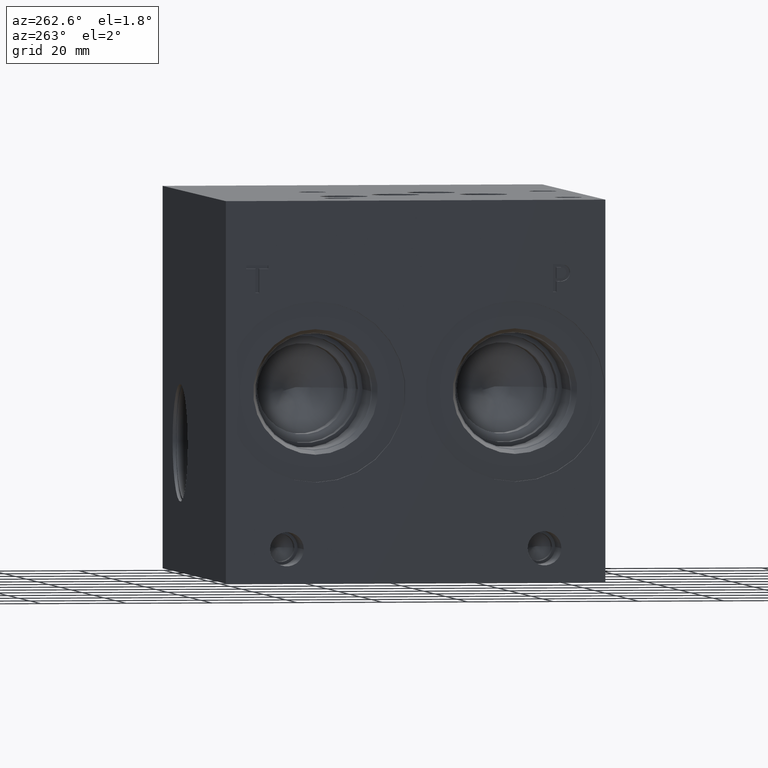
[diagram: clean part render]
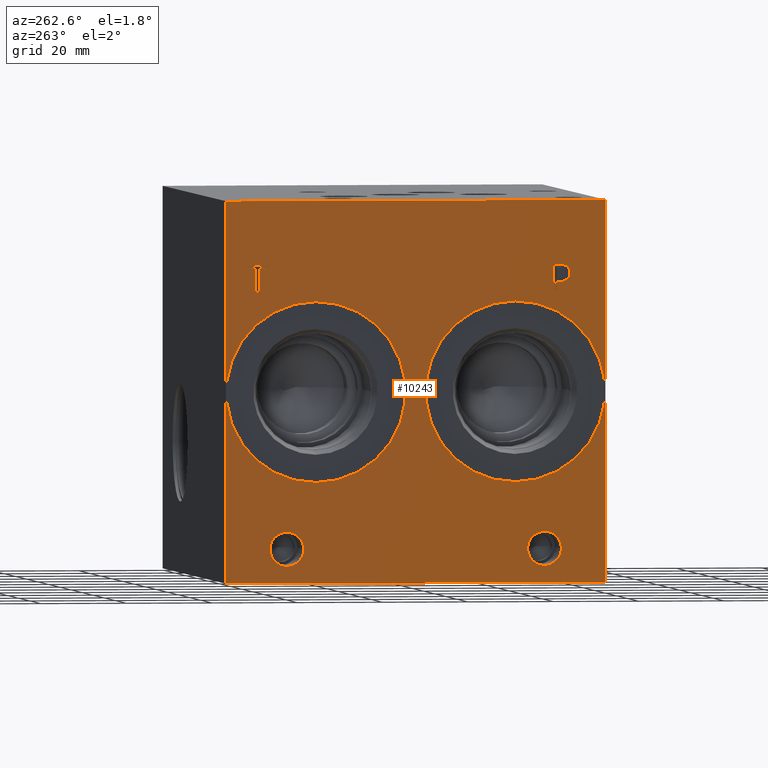
[diagram: same view with one face highlighted and labeled with its STEP entity id]
A machine part, auxiliary view. The second image highlights one B-rep face of the part: STEP entity #10243.
In plain terms, the highlighted planar face has unit normal (-1, 0, 0).
Its self-contained STEP definition (entity closure, byte-faithful):
#116=CIRCLE('',#10798,21.0185);
#117=CIRCLE('',#10799,21.0185);
#118=CIRCLE('',#10800,21.0185);
#119=CIRCLE('',#10801,21.0185);
#120=CIRCLE('',#10802,3.9624);
#121=CIRCLE('',#10803,3.9624);
#122=CIRCLE('',#10804,3.9624);
#123=CIRCLE('',#10805,3.9624);
#327=FACE_BOUND('',#1319,.T.);
#328=FACE_BOUND('',#1320,.T.);
#329=FACE_BOUND('',#1321,.T.);
#330=FACE_BOUND('',#1322,.T.);
#331=FACE_BOUND('',#1323,.T.);
#332=FACE_BOUND('',#1324,.T.);
#434=PLANE('',#10797);
#762=FACE_OUTER_BOUND('',#1318,.T.);
#1318=EDGE_LOOP('',(#6923,#6924,#6925,#6926));
#1319=EDGE_LOOP('',(#6927,#6928,#6929,#6930,#6931,#6932,#6933,#6934));
#1320=EDGE_LOOP('',(#6935,#6936));
#1321=EDGE_LOOP('',(#6937,#6938));
#1322=EDGE_LOOP('',(#6939,#6940));
#1323=EDGE_LOOP('',(#6941,#6942));
#1324=EDGE_LOOP('',(#6943,#6944,#6945,#6946,#6947,#6948,#6949,#6950,#6951));
#1943=LINE('',#13867,#2929);
#1947=LINE('',#13875,#2933);
#1950=LINE('',#13881,#2936);
#1953=LINE('',#13887,#2939);
#1956=LINE('',#13893,#2942);
#1959=LINE('',#13899,#2945);
#1962=LINE('',#13905,#2948);
#1965=LINE('',#13910,#2951);
#1983=LINE('',#14050,#2969);
#1986=LINE('',#14056,#2972);
#1989=LINE('',#14062,#2975);
#1992=LINE('',#14068,#2978);
#1995=LINE('',#14074,#2981);
#1999=LINE('',#14117,#2985);
#2000=LINE('',#14119,#2986);
#2001=LINE('',#14121,#2987);
#2002=LINE('',#14122,#2988);
#2929=VECTOR('',#11486,10.);
#2933=VECTOR('',#11492,10.);
#2936=VECTOR('',#11497,10.);
#2939=VECTOR('',#11502,10.);
#2942=VECTOR('',#11507,10.);
#2945=VECTOR('',#11512,10.);
#2948=VECTOR('',#11517,10.);
#2951=VECTOR('',#11522,10.);
#2969=VECTOR('',#11550,10.);
#2972=VECTOR('',#11555,10.);
#2975=VECTOR('',#11560,10.);
#2978=VECTOR('',#11565,10.);
#2981=VECTOR('',#11570,10.);
#2985=VECTOR('',#11578,10.);
#2986=VECTOR('',#11579,10.);
#2987=VECTOR('',#11580,10.);
#2988=VECTOR('',#11581,10.);
#3879=B_SPLINE_CURVE_WITH_KNOTS('',2,(#14017,#14018,#14019,#14020),
 .UNSPECIFIED.,.F.,.F.,(3,1,3),(0.,1.,2.),.UNSPECIFIED.);
#3881=B_SPLINE_CURVE_WITH_KNOTS('',2,(#14038,#14039,#14040,#14041),
 .UNSPECIFIED.,.F.,.F.,(3,1,3),(0.,1.,2.),.UNSPECIFIED.);
#3883=B_SPLINE_CURVE_WITH_KNOTS('',2,(#14087,#14088,#14089,#14090),
 .UNSPECIFIED.,.F.,.F.,(3,1,3),(0.,1.,2.),.UNSPECIFIED.);
#3885=B_SPLINE_CURVE_WITH_KNOTS('',2,(#14105,#14106,#14107,#14108),
 .UNSPECIFIED.,.F.,.F.,(3,1,3),(0.,1.,2.),.UNSPECIFIED.);
#4206=VERTEX_POINT('',#13865);
#4207=VERTEX_POINT('',#13866);
#4210=VERTEX_POINT('',#13874);
#4212=VERTEX_POINT('',#13880);
#4214=VERTEX_POINT('',#13886);
#4216=VERTEX_POINT('',#13892);
#4218=VERTEX_POINT('',#13898);
#4220=VERTEX_POINT('',#13904);
#4236=VERTEX_POINT('',#14015);
#4237=VERTEX_POINT('',#14016);
#4240=VERTEX_POINT('',#14037);
#4242=VERTEX_POINT('',#14049);
#4244=VERTEX_POINT('',#14055);
#4246=VERTEX_POINT('',#14061);
#4248=VERTEX_POINT('',#14067);
#4250=VERTEX_POINT('',#14073);
#4252=VERTEX_POINT('',#14086);
#4254=VERTEX_POINT('',#14115);
#4255=VERTEX_POINT('',#14116);
#4256=VERTEX_POINT('',#14118);
#4257=VERTEX_POINT('',#14120);
#4258=VERTEX_POINT('',#14123);
#4259=VERTEX_POINT('',#14124);
#4260=VERTEX_POINT('',#14127);
#4261=VERTEX_POINT('',#14128);
#4262=VERTEX_POINT('',#14131);
#4263=VERTEX_POINT('',#14132);
#4264=VERTEX_POINT('',#14135);
#4265=VERTEX_POINT('',#14136);
#5249=EDGE_CURVE('',#4206,#4207,#1943,.T.);
#5253=EDGE_CURVE('',#4210,#4206,#1947,.T.);
#5256=EDGE_CURVE('',#4212,#4210,#1950,.T.);
#5259=EDGE_CURVE('',#4214,#4212,#1953,.T.);
#5262=EDGE_CURVE('',#4216,#4214,#1956,.T.);
#5265=EDGE_CURVE('',#4218,#4216,#1959,.T.);
#5268=EDGE_CURVE('',#4220,#4218,#1962,.T.);
#5271=EDGE_CURVE('',#4207,#4220,#1965,.T.);
#5294=EDGE_CURVE('',#4236,#4237,#3879,.T.);
#5298=EDGE_CURVE('',#4240,#4236,#3881,.T.);
#5301=EDGE_CURVE('',#4242,#4240,#1983,.T.);
#5304=EDGE_CURVE('',#4244,#4242,#1986,.T.);
#5307=EDGE_CURVE('',#4246,#4244,#1989,.T.);
#5310=EDGE_CURVE('',#4248,#4246,#1992,.T.);
#5313=EDGE_CURVE('',#4250,#4248,#1995,.T.);
#5316=EDGE_CURVE('',#4252,#4250,#3883,.T.);
#5319=EDGE_CURVE('',#4237,#4252,#3885,.T.);
#5321=EDGE_CURVE('',#4254,#4255,#1999,.T.);
#5322=EDGE_CURVE('',#4255,#4256,#2000,.T.);
#5323=EDGE_CURVE('',#4257,#4256,#2001,.T.);
#5324=EDGE_CURVE('',#4254,#4257,#2002,.T.);
#5325=EDGE_CURVE('',#4258,#4259,#116,.T.);
#5326=EDGE_CURVE('',#4259,#4258,#117,.T.);
#5327=EDGE_CURVE('',#4260,#4261,#118,.T.);
#5328=EDGE_CURVE('',#4261,#4260,#119,.T.);
#5329=EDGE_CURVE('',#4262,#4263,#120,.T.);
#5330=EDGE_CURVE('',#4263,#4262,#121,.T.);
#5331=EDGE_CURVE('',#4264,#4265,#122,.T.);
#5332=EDGE_CURVE('',#4265,#4264,#123,.T.);
#6923=ORIENTED_EDGE('',*,*,#5321,.T.);
#6924=ORIENTED_EDGE('',*,*,#5322,.T.);
#6925=ORIENTED_EDGE('',*,*,#5323,.F.);
#6926=ORIENTED_EDGE('',*,*,#5324,.F.);
#6927=ORIENTED_EDGE('',*,*,#5249,.T.);
#6928=ORIENTED_EDGE('',*,*,#5271,.T.);
#6929=ORIENTED_EDGE('',*,*,#5268,.T.);
#6930=ORIENTED_EDGE('',*,*,#5265,.T.);
#6931=ORIENTED_EDGE('',*,*,#5262,.T.);
#6932=ORIENTED_EDGE('',*,*,#5259,.T.);
#6933=ORIENTED_EDGE('',*,*,#5256,.T.);
#6934=ORIENTED_EDGE('',*,*,#5253,.T.);
#6935=ORIENTED_EDGE('',*,*,#5325,.T.);
#6936=ORIENTED_EDGE('',*,*,#5326,.T.);
#6937=ORIENTED_EDGE('',*,*,#5327,.T.);
#6938=ORIENTED_EDGE('',*,*,#5328,.T.);
#6939=ORIENTED_EDGE('',*,*,#5329,.T.);
#6940=ORIENTED_EDGE('',*,*,#5330,.T.);
#6941=ORIENTED_EDGE('',*,*,#5331,.T.);
#6942=ORIENTED_EDGE('',*,*,#5332,.T.);
#6943=ORIENTED_EDGE('',*,*,#5294,.T.);
#6944=ORIENTED_EDGE('',*,*,#5319,.T.);
#6945=ORIENTED_EDGE('',*,*,#5316,.T.);
#6946=ORIENTED_EDGE('',*,*,#5313,.T.);
#6947=ORIENTED_EDGE('',*,*,#5310,.T.);
#6948=ORIENTED_EDGE('',*,*,#5307,.T.);
#6949=ORIENTED_EDGE('',*,*,#5304,.T.);
#6950=ORIENTED_EDGE('',*,*,#5301,.T.);
#6951=ORIENTED_EDGE('',*,*,#5298,.T.);
#10243=ADVANCED_FACE('',(#762,#327,#328,#329,#330,#331,#332),#434,.T.);
#10797=AXIS2_PLACEMENT_3D('',#14114,#11576,#11577);
#10798=AXIS2_PLACEMENT_3D('',#14125,#11582,#11583);
#10799=AXIS2_PLACEMENT_3D('',#14126,#11584,#11585);
#10800=AXIS2_PLACEMENT_3D('',#14129,#11586,#11587);
#10801=AXIS2_PLACEMENT_3D('',#14130,#11588,#11589);
#10802=AXIS2_PLACEMENT_3D('',#14133,#11590,#11591);
#10803=AXIS2_PLACEMENT_3D('',#14134,#11592,#11593);
#10804=AXIS2_PLACEMENT_3D('',#14137,#11594,#11595);
#10805=AXIS2_PLACEMENT_3D('',#14138,#11596,#11597);
#11486=DIRECTION('',(0.,1.,0.));
#11492=DIRECTION('',(0.,3.17280044688051E-15,-1.));
#11497=DIRECTION('',(0.,1.,8.33818088455555E-15));
#11502=DIRECTION('',(0.,0.,-1.));
#11507=DIRECTION('',(0.,-1.,-3.47984565141734E-15));
#11512=DIRECTION('',(0.,0.,1.));
#11517=DIRECTION('',(0.,1.,0.));
#11522=DIRECTION('',(0.,-3.17280044688051E-15,1.));
#11550=DIRECTION('',(0.,-1.,-5.56775304226775E-15));
#11555=DIRECTION('',(0.,-3.14708893596576E-15,1.));
#11560=DIRECTION('',(0.,1.,1.0524411238433E-14));
#11565=DIRECTION('',(0.,2.8141360485375E-15,-1.));
#11570=DIRECTION('',(0.,1.,0.));
#11576=DIRECTION('center_axis',(-1.,0.,0.));
#11577=DIRECTION('ref_axis',(0.,-1.,0.));
#11578=DIRECTION('',(0.,-1.,0.));
#11579=DIRECTION('',(0.,0.,1.));
#11580=DIRECTION('',(0.,-1.,0.));
#11581=DIRECTION('',(0.,0.,1.));
#11582=DIRECTION('center_axis',(1.,0.,0.));
#11583=DIRECTION('ref_axis',(0.,0.,1.));
#11584=DIRECTION('center_axis',(1.,0.,0.));
#11585=DIRECTION('ref_axis',(0.,0.,1.));
#11586=DIRECTION('center_axis',(1.,0.,0.));
#11587=DIRECTION('ref_axis',(0.,0.,1.));
#11588=DIRECTION('center_axis',(1.,0.,0.));
#11589=DIRECTION('ref_axis',(0.,0.,1.));
#11590=DIRECTION('center_axis',(1.,0.,0.));
#11591=DIRECTION('ref_axis',(0.,1.,0.));
#11592=DIRECTION('center_axis',(1.,0.,0.));
#11593=DIRECTION('ref_axis',(0.,1.,0.));
#11594=DIRECTION('center_axis',(1.,0.,0.));
#11595=DIRECTION('ref_axis',(0.,1.,0.));
#11596=DIRECTION('center_axis',(1.,0.,0.));
#11597=DIRECTION('ref_axis',(0.,1.,0.));
#13865=CARTESIAN_POINT('',(0.,81.104834728547,67.564));
#13866=CARTESIAN_POINT('',(0.,81.9487569200865,67.564));
#13867=CARTESIAN_POINT('',(0.,85.0024173642735,67.564));
#13874=CARTESIAN_POINT('',(0.,81.104834728547,73.1627033194816));
#13875=CARTESIAN_POINT('',(0.,81.1048347285471,36.5813516597408));
#13880=CARTESIAN_POINT('',(0.,78.9744457816119,73.1627033194815));
#13881=CARTESIAN_POINT('',(0.,83.9372228908057,73.1627033194816));
#13886=CARTESIAN_POINT('',(0.,78.9744457816119,73.9139999046326));
#13887=CARTESIAN_POINT('',(0.,78.9744457816119,36.9569999523163));
#13892=CARTESIAN_POINT('',(0.,84.0791458670216,73.9139999046326));
#13893=CARTESIAN_POINT('',(0.,86.4895729335107,73.9139999046326));
#13898=CARTESIAN_POINT('',(0.,84.0791458670216,73.1627033194816));
#13899=CARTESIAN_POINT('',(0.,84.0791458670216,36.5813516597408));
#13904=CARTESIAN_POINT('',(0.,81.9487569200865,73.1627033194816));
#13905=CARTESIAN_POINT('',(0.,85.4243784600433,73.1627033194816));
#13910=CARTESIAN_POINT('',(0.,81.9487569200866,33.782));
#14015=CARTESIAN_POINT('',(0.,9.05343279764059,73.5177681439707));
#14016=CARTESIAN_POINT('',(0.,8.296990345468,71.9997373726039));
#14017=CARTESIAN_POINT('Ctrl Pts',(0.,9.05343279764059,73.5177681439707));
#14018=CARTESIAN_POINT('Ctrl Pts',(0.,8.69836797315142,73.2759123939563));
#14019=CARTESIAN_POINT('Ctrl Pts',(0.,8.296990345468,72.5297616758269));
#14020=CARTESIAN_POINT('Ctrl Pts',(0.,8.296990345468,71.9997373726039));
#14037=CARTESIAN_POINT('',(0.,10.7155478456117,73.9139999046325));
#14038=CARTESIAN_POINT('Ctrl Pts',(0.,10.7155478456117,73.9139999046325));
#14039=CARTESIAN_POINT('Ctrl Pts',(0.,10.1495024732376,73.9139999046325));
#14040=CARTESIAN_POINT('Ctrl Pts',(0.,9.35703895191395,73.7287486918556));
#14041=CARTESIAN_POINT('Ctrl Pts',(0.,9.05343279764059,73.5177681439707));
#14049=CARTESIAN_POINT('',(0.,12.3107666223022,73.9139999046325));
#14050=CARTESIAN_POINT('',(0.,50.6053833111509,73.9139999046328));
#14055=CARTESIAN_POINT('',(0.,12.3107666223022,67.564));
#14056=CARTESIAN_POINT('',(0.,12.3107666223023,33.7819999999999));
#14061=CARTESIAN_POINT('',(0.,11.4668444307627,67.564));
#14062=CARTESIAN_POINT('',(0.,50.183422215381,67.5640000000004));
#14067=CARTESIAN_POINT('',(0.,11.4668444307627,69.9310988299278));
#14068=CARTESIAN_POINT('',(0.,11.4668444307628,34.9655494149638));
#14073=CARTESIAN_POINT('',(0.,10.7515689147628,69.9310988299278));
#14074=CARTESIAN_POINT('',(0.,49.8257844573814,69.9310988299278));
#14086=CARTESIAN_POINT('',(0.,8.8527439837989,70.5897698086904));
#14087=CARTESIAN_POINT('Ctrl Pts',(0.,8.8527439837989,70.5897698086904));
#14088=CARTESIAN_POINT('Ctrl Pts',(0.,9.18207947318016,70.2655801863307));
#14089=CARTESIAN_POINT('Ctrl Pts',(0.,10.0723144679139,69.9310988299278));
#14090=CARTESIAN_POINT('Ctrl Pts',(0.,10.7515689147628,69.9310988299278));
#14105=CARTESIAN_POINT('Ctrl Pts',(0.,8.296990345468,71.9997373726039));
#14106=CARTESIAN_POINT('Ctrl Pts',(0.,8.296990345468,71.5880680108773));
#14107=CARTESIAN_POINT('Ctrl Pts',(0.,8.5903047656982,70.8470631597695));
#14108=CARTESIAN_POINT('Ctrl Pts',(0.,8.8527439837989,70.5897698086904));
#14114=CARTESIAN_POINT('Origin',(0.,88.9,0.));
#14115=CARTESIAN_POINT('',(0.,88.9,0.));
#14116=CARTESIAN_POINT('',(0.,0.,0.));
#14117=CARTESIAN_POINT('',(0.,88.9,0.));
#14118=CARTESIAN_POINT('',(0.,0.,88.9));
#14119=CARTESIAN_POINT('',(0.,0.,0.));
#14120=CARTESIAN_POINT('',(0.,88.9,88.9));
#14121=CARTESIAN_POINT('',(0.,88.9,88.9));
#14122=CARTESIAN_POINT('',(0.,88.9,0.));
#14123=CARTESIAN_POINT('',(0.,21.082,65.4685));
#14124=CARTESIAN_POINT('',(0.,21.082,23.4315));
#14125=CARTESIAN_POINT('Origin',(0.,21.082,44.45));
#14126=CARTESIAN_POINT('Origin',(0.,21.082,44.45));
#14127=CARTESIAN_POINT('',(0.,67.818,65.4685));
#14128=CARTESIAN_POINT('',(0.,67.818,23.4315));
#14129=CARTESIAN_POINT('Origin',(0.,67.818,44.45));
#14130=CARTESIAN_POINT('Origin',(0.,67.818,44.45));
#14131=CARTESIAN_POINT('',(0.,78.5876,7.92479999999999));
#14132=CARTESIAN_POINT('',(0.,70.6628,7.92479999999999));
#14133=CARTESIAN_POINT('Origin',(0.,74.6252,7.92479999999999));
#14134=CARTESIAN_POINT('Origin',(0.,74.6252,7.92479999999999));
#14135=CARTESIAN_POINT('',(0.,18.2372,7.92479999999999));
#14136=CARTESIAN_POINT('',(0.,10.3124,7.92479999999999));
#14137=CARTESIAN_POINT('Origin',(0.,14.2748,7.92479999999999));
#14138=CARTESIAN_POINT('Origin',(0.,14.2748,7.92479999999999));